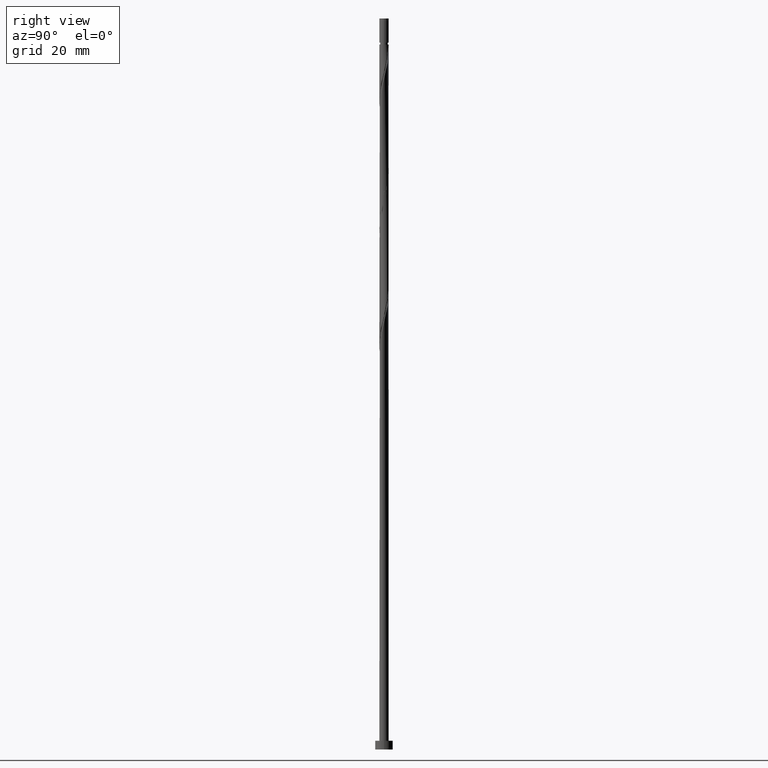
[diagram: clean part render]
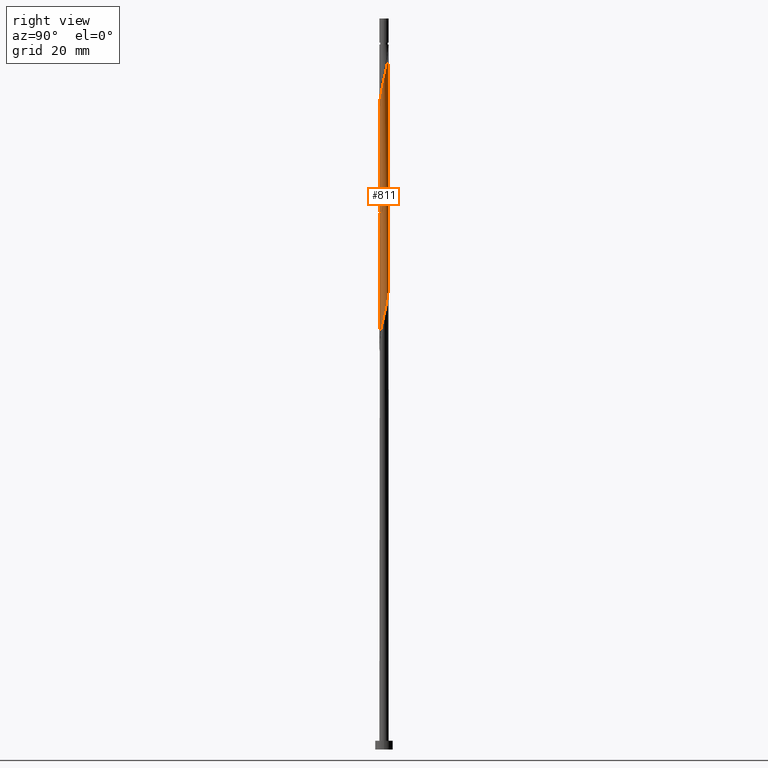
[diagram: same view with one face highlighted and labeled with its STEP entity id]
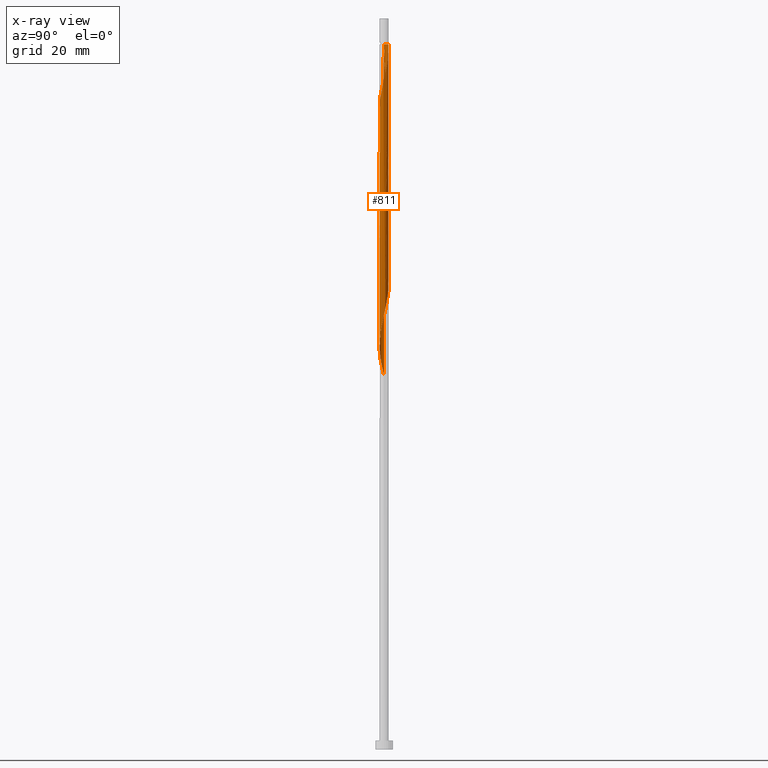
[diagram: x-ray of the same camera — body ghosted, the highlighted face saturated]
A machine part, right view. The second image highlights one B-rep face of the part: STEP entity #811.
The next image is the same camera in x-ray: the body ghosted, the highlighted face saturated — about 0% of this face is hidden behind the body in this view.
In plain terms, the highlighted cylindrical surface (bore or boss wall) has radius 0.8 mm, axis along (-0, -0, -1).
Its self-contained STEP definition (entity closure, byte-faithful):
#3 = ORIENTED_EDGE ( 'NONE', *, *, #1237, .F. ) ;
#8 = CARTESIAN_POINT ( 'NONE',  ( 0.4473088524546935396, -0.6752552068035418964, 71.06953628322825978 ) ) ;
#15 = CARTESIAN_POINT ( 'NONE',  ( 0.7804319017355962895, 0.2167506644810794636, 75.23620294989488855 ) ) ;
#20 = CARTESIAN_POINT ( 'NONE',  ( -0.8000000000000014877, -5.097654946289876929E-16, 105.5885053913652172 ) ) ;
#34 = CARTESIAN_POINT ( 'NONE',  ( -0.6340813333660076934, 0.5039798274498836772, 103.3612029498949170 ) ) ;
#39 = CARTESIAN_POINT ( 'NONE',  ( -0.8000000000000013767, -5.509965272828037295E-16, 104.2589005084246594 ) ) ;
#42 = CARTESIAN_POINT ( 'NONE',  ( 0.5406950929103505610, 0.5896175171267123982, 117.4237029498949028 ) ) ;
#49 = CARTESIAN_POINT ( 'NONE',  ( -0.6340813333660078044, -0.5039798274498836772, 106.4862029498949454 ) ) ;
#76 = EDGE_CURVE ( 'NONE', #121, #670, #1038, .T. ) ;
#86 = CARTESIAN_POINT ( 'NONE',  ( 0.4473088524546935396, -0.6752552068035418964, 91.90286961656158837 ) ) ;
#92 = CARTESIAN_POINT ( 'NONE',  ( 0.8000000000000012657, -0.08040302522073779212, 94.83753414929067560 ) ) ;
#116 = CARTESIAN_POINT ( 'NONE',  ( 0.8092144845369735329, -0.03502458872262308176, 74.19453628322821714 ) ) ;
#121 = VERTEX_POINT ( 'NONE', #1060 ) ;
#124 = CARTESIAN_POINT ( 'NONE',  ( 0.03502458872262293604, 0.8092144845369735329, 79.40286961656154574 ) ) ;
#132 = CARTESIAN_POINT ( 'NONE',  ( 0.2167506644810797689, 0.7804319017355962895, 118.9862029498949312 ) ) ;
#139 = CARTESIAN_POINT ( 'NONE',  ( 0.2833713911514963435, 0.7587855154630286370, 99.19453628322821714 ) ) ;
#145 = CARTESIAN_POINT ( 'NONE',  ( 0.6752552068035416744, -0.4473088524546935396, 112.7362029498949170 ) ) ;
#147 = CARTESIAN_POINT ( 'NONE',  ( 0.3936756093006903434, 0.6964334244145183872, 98.67370294989493118 ) ) ;
#151 = CARTESIAN_POINT ( 'NONE',  ( 0.7948231931362848002, -0.09086303787922843378, 114.2987029498949454 ) ) ;
#153 = CARTESIAN_POINT ( 'NONE',  ( 0.7278435542695692595, 0.3320297584678866265, 96.59036961656160258 ) ) ;
#156 = VECTOR ( 'NONE', #889, 1000.000000000000000 ) ;
#158 = CARTESIAN_POINT ( 'NONE',  ( -0.7840000000000013625, -0.1591979899370594975, 104.9237029498948885 ) ) ;
#160 = ORIENTED_EDGE ( 'NONE', *, *, #531, .T. ) ;
#174 = CARTESIAN_POINT ( 'NONE',  ( -0.03502458872262301931, -0.8092144845369735329, 68.98620294989488855 ) ) ;
#192 = CARTESIAN_POINT ( 'NONE',  ( -0.7840000000000015845, 0.1591979899370596363, 84.09036961656160258 ) ) ;
#198 = CARTESIAN_POINT ( 'NONE',  ( -0.03502458872262301931, -0.8092144845369735329, 89.81953628322821714 ) ) ;
#206 = EDGE_CURVE ( 'NONE', #1351, #1007, #1102, .T. ) ;
#210 = ORIENTED_EDGE ( 'NONE', *, *, #271, .F. ) ;
#221 = CARTESIAN_POINT ( 'NONE',  ( 0.3936756093006903434, 0.6964334244145183872, 77.84036961656158837 ) ) ;
#232 = CARTESIAN_POINT ( 'NONE',  ( 0.1591979899370597751, 0.7840000000000015845, 78.88203628322828820 ) ) ;
#256 = CARTESIAN_POINT ( 'NONE',  ( -0.3320297584678867375, -0.7278435542695689264, 108.0487029498949312 ) ) ;
#268 = CARTESIAN_POINT ( 'NONE',  ( 0.2833713911514960659, -0.7587855154630289700, 110.6528696165615884 ) ) ;
#270 = CARTESIAN_POINT ( 'NONE',  ( -0.6964334244145183872, 0.3936756093006901769, 103.8820362832282882 ) ) ;
#271 = EDGE_CURVE ( 'NONE', #121, #795, #508, .T. ) ;
#290 = CARTESIAN_POINT ( 'NONE',  ( -0.7278435542695691485, -0.3320297584678866265, 65.34036961656160258 ) ) ;
#299 = CARTESIAN_POINT ( 'NONE',  ( -0.7948231931362853553, -0.09086303787922836439, 85.13203628322828820 ) ) ;
#305 = CARTESIAN_POINT ( 'NONE',  ( 0.7840000000000015845, -0.1591979899370597473, 94.50703628322827399 ) ) ;
#327 = CARTESIAN_POINT ( 'NONE',  ( -0.2167506644810796024, 0.7804319017355962895, 80.44453628322824557 ) ) ;
#335 = CARTESIAN_POINT ( 'NONE',  ( 0.3320297584678866265, -0.7278435542695691485, 70.54870294989491697 ) ) ;
#354 = CARTESIAN_POINT ( 'NONE',  ( 0.8000000000000014877, 1.094496503174003127E-15, 95.17183872469851735 ) ) ;
#361 = CARTESIAN_POINT ( 'NONE',  ( 0.4473088524546936506, 0.6752552068035415633, 117.9445362832282598 ) ) ;
#368 = CARTESIAN_POINT ( 'NONE',  ( -0.8000000000000005995, -0.08040302522073981828, 104.5932050838324585 ) ) ;
#371 = CARTESIAN_POINT ( 'NONE',  ( 0.1591979899370597751, 0.7840000000000015845, 99.71536961656160258 ) ) ;
#376 = CARTESIAN_POINT ( 'NONE',  ( 0.7587855154630289700, 0.2833713911514960104, 115.8612029498949454 ) ) ;
#378 = DIRECTION ( 'NONE',  ( -0.000000000000000000, -0.000000000000000000, -1.000000000000000000 ) ) ;
#388 = VECTOR ( 'NONE', #1297, 1000.000000000000000 ) ;
#396 = CARTESIAN_POINT ( 'NONE',  ( 0.09086303787922830888, -0.7948231931362853553, 69.50703628322828820 ) ) ;
#402 = CARTESIAN_POINT ( 'NONE',  ( -0.7804319017355962895, -0.2167506644810796024, 64.81953628322825978 ) ) ;
#411 = CARTESIAN_POINT ( 'NONE',  ( -0.7278435542695691485, -0.3320297584678866265, 86.17370294989491697 ) ) ;
#416 = CARTESIAN_POINT ( 'NONE',  ( 0.6964334244145183872, -0.3936756093006902324, 93.46536961656161679 ) ) ;
#424 = ORIENTED_EDGE ( 'NONE', *, *, #76, .T. ) ;
#428 = CARTESIAN_POINT ( 'NONE',  ( 0.8000000000000000444, 9.797174393178826150E-17, 125.0000000000000000 ) ) ;
#441 = ORIENTED_EDGE ( 'NONE', *, *, #867, .F. ) ;
#442 = ORIENTED_EDGE ( 'NONE', *, *, #735, .F. ) ;
#448 = CARTESIAN_POINT ( 'NONE',  ( 0.5896175171267131754, 0.5406950929103506720, 76.79870294989494539 ) ) ;
#455 = CARTESIAN_POINT ( 'NONE',  ( 0.7840000000000015845, -0.1591979899370597473, 73.67370294989491697 ) ) ;
#475 = CYLINDRICAL_SURFACE ( 'NONE', #726, 0.8000000000000000444 ) ;
#484 = CARTESIAN_POINT ( 'NONE',  ( -0.8000000000000021538, 0.08040302522073304592, 105.2542008159573612 ) ) ;
#508 = LINE ( 'NONE', #966, #388 ) ;
#509 = CARTESIAN_POINT ( 'NONE',  ( -0.2833713911514962880, -0.7587855154630286370, 67.94453628322823135 ) ) ;
#518 = CARTESIAN_POINT ( 'NONE',  ( -0.3936756093006901769, -0.6964334244145183872, 67.42370294989491697 ) ) ;
#523 = VERTEX_POINT ( 'NONE', #1008 ) ;
#527 = CARTESIAN_POINT ( 'NONE',  ( -0.3936756093006901769, -0.6964334244145183872, 88.25703628322827399 ) ) ;
#531 = EDGE_CURVE ( 'NONE', #523, #1007, #763, .T. ) ;
#534 = CARTESIAN_POINT ( 'NONE',  ( -0.5896175171267131754, -0.5406950929103506720, 87.21536961656157416 ) ) ;
#540 = CARTESIAN_POINT ( 'NONE',  ( 0.6340813333660076934, -0.5039798274498837882, 92.94453628322827399 ) ) ;
#556 = EDGE_LOOP ( 'NONE', ( #210, #424, #442, #160, #662, #3, #913, #441 ) ) ;
#563 = CARTESIAN_POINT ( 'NONE',  ( 0.7587855154630286370, -0.2833713911514963435, 73.15286961656157416 ) ) ;
#569 = CARTESIAN_POINT ( 'NONE',  ( 0.5039798274498837882, 0.6340813333660076934, 77.31953628322825978 ) ) ;
#586 = CARTESIAN_POINT ( 'NONE',  ( 0.5039798274498837882, 0.6340813333660076934, 98.15286961656157416 ) ) ;
#592 = CARTESIAN_POINT ( 'NONE',  ( 0.7278435542695689264, -0.3320297584678867375, 113.2570362832282456 ) ) ;
#594 = CARTESIAN_POINT ( 'NONE',  ( -0.8000000000000014877, 1.015782713562174009E-15, 63.92183872469851735 ) ) ;
#600 = CARTESIAN_POINT ( 'NONE',  ( 0.8092144845369734218, 0.03502458872262277645, 114.8195362832282598 ) ) ;
#604 = CARTESIAN_POINT ( 'NONE',  ( 0.7804319017355962895, 0.2167506644810794636, 96.06953628322824557 ) ) ;
#609 = CARTESIAN_POINT ( 'NONE',  ( -0.7587855154630289700, -0.2833713911514961215, 105.4445362832282456 ) ) ;
#628 = CARTESIAN_POINT ( 'NONE',  ( 0.2167506644810794636, -0.7804319017355962895, 70.02786961656157416 ) ) ;
#645 = CARTESIAN_POINT ( 'NONE',  ( -0.7587855154630288590, 0.2833713911514962880, 83.56953628322824557 ) ) ;
#651 = AXIS2_PLACEMENT_3D ( 'NONE', #951, #717, #1169 ) ;
#662 = ORIENTED_EDGE ( 'NONE', *, *, #206, .F. ) ;
#665 = CARTESIAN_POINT ( 'NONE',  ( 0.8000000000000014877, 1.094496503174003127E-15, 95.17183872469851735 ) ) ;
#669 = VERTEX_POINT ( 'NONE', #1442 ) ;
#670 = VERTEX_POINT ( 'NONE', #1168 ) ;
#675 = CARTESIAN_POINT ( 'NONE',  ( -0.5406950929103506720, 0.5896175171267129533, 82.00703628322830241 ) ) ;
#684 = CARTESIAN_POINT ( 'NONE',  ( -0.6964334244145183872, 0.3936756093006901769, 83.04870294989493118 ) ) ;
#693 = CARTESIAN_POINT ( 'NONE',  ( -0.1591979899370589702, 0.7839999999999969216, 120.5487029498949312 ) ) ;
#709 = CARTESIAN_POINT ( 'NONE',  ( -0.09086303787922839215, -0.7948231931362848002, 109.0903696165615884 ) ) ;
#716 = CARTESIAN_POINT ( 'NONE',  ( 0.7804319017355962895, -0.2167506644810797134, 113.7778696165616168 ) ) ;
#717 = DIRECTION ( 'NONE',  ( -0.000000000000000000, -0.000000000000000000, -1.000000000000000000 ) ) ;
#718 = CARTESIAN_POINT ( 'NONE',  ( -0.7840000000000015845, 0.1591979899370596363, 104.9237029498949454 ) ) ;
#722 = CARTESIAN_POINT ( 'NONE',  ( 0.5039798274498835662, -0.6340813333660078044, 111.6945362832282882 ) ) ;
#725 = CARTESIAN_POINT ( 'NONE',  ( 0.03502458872262293604, 0.8092144845369735329, 100.2362029498949170 ) ) ;
#726 = AXIS2_PLACEMENT_3D ( 'NONE', #1391, #378, #1372 ) ;
#735 = EDGE_CURVE ( 'NONE', #523, #670, #1392, .T. ) ;
#745 = CARTESIAN_POINT ( 'NONE',  ( -0.6752552068035418964, -0.4473088524546935396, 65.86120294989491697 ) ) ;
#755 = CARTESIAN_POINT ( 'NONE',  ( 0.7587855154630286370, -0.2833713911514963435, 93.98620294989488855 ) ) ;
#761 = CARTESIAN_POINT ( 'NONE',  ( 0.3320297584678866265, -0.7278435542695691485, 91.38203628322827399 ) ) ;
#763 = LINE ( 'NONE', #877, #986 ) ;
#783 = CARTESIAN_POINT ( 'NONE',  ( 0.2833713911514963435, 0.7587855154630286370, 78.36120294989493118 ) ) ;
#795 = VERTEX_POINT ( 'NONE', #20 ) ;
#811 = ADVANCED_FACE ( 'NONE', ( #928 ), #475, .T. ) ;
#818 = CARTESIAN_POINT ( 'NONE',  ( -0.6964334244145182762, -0.3936756093006898438, 105.9653696165615742 ) ) ;
#828 = CARTESIAN_POINT ( 'NONE',  ( -0.2167506644810796856, -0.7804319017355960675, 108.5695362832282740 ) ) ;
#834 = CARTESIAN_POINT ( 'NONE',  ( 0.6964334244145182762, 0.3936756093006897883, 116.3820362832282740 ) ) ;
#859 = CARTESIAN_POINT ( 'NONE',  ( -0.7948231931362853553, -0.09086303787922836439, 64.29870294989494539 ) ) ;
#867 = EDGE_CURVE ( 'NONE', #795, #1351, #1341, .T. ) ;
#870 = CARTESIAN_POINT ( 'NONE',  ( 0.5406950929103506720, -0.5896175171267131754, 92.42370294989493118 ) ) ;
#875 = CARTESIAN_POINT ( 'NONE',  ( 0.2167506644810794636, -0.7804319017355962895, 90.86120294989491697 ) ) ;
#877 = CARTESIAN_POINT ( 'NONE',  ( -0.8000000000000000444, 0.000000000000000000, 125.0000000000000000 ) ) ;
#889 = DIRECTION ( 'NONE',  ( -0.000000000000000000, -0.000000000000000000, -1.000000000000000000 ) ) ;
#899 = CARTESIAN_POINT ( 'NONE',  ( -0.6340813333660076934, 0.5039798274498836772, 82.52786961656158837 ) ) ;
#908 = CARTESIAN_POINT ( 'NONE',  ( 0.6752552068035418964, 0.4473088524546934841, 76.27786961656158837 ) ) ;
#913 = ORIENTED_EDGE ( 'NONE', *, *, #1237, .T. ) ;
#928 = FACE_OUTER_BOUND ( 'NONE', #556, .T. ) ;
#935 = CARTESIAN_POINT ( 'NONE',  ( -0.09086303787922840602, 0.7948231931362851332, 100.7570362832282882 ) ) ;
#940 = CARTESIAN_POINT ( 'NONE',  ( -0.4473088524546935396, -0.6752552068035416744, 107.5278696165616168 ) ) ;
#944 = CARTESIAN_POINT ( 'NONE',  ( -0.2167506644810796024, 0.7804319017355962895, 101.2778696165615884 ) ) ;
#951 = CARTESIAN_POINT ( 'NONE',  ( 0.000000000000000000, 0.000000000000000000, 120.5487029498949170 ) ) ;
#966 = CARTESIAN_POINT ( 'NONE',  ( -0.8000000000000000444, 0.000000000000000000, 125.0000000000000000 ) ) ;
#983 = CARTESIAN_POINT ( 'NONE',  ( -0.6752552068035418964, -0.4473088524546935396, 86.69453628322825978 ) ) ;
#986 = VECTOR ( 'NONE', #1155, 1000.000000000000000 ) ;
#1007 = VERTEX_POINT ( 'NONE', #594 ) ;
#1008 = CARTESIAN_POINT ( 'NONE',  ( -0.8000000000000012657, -5.509965272828037295E-16, 104.2589005084246594 ) ) ;
#1021 = CARTESIAN_POINT ( 'NONE',  ( 0.6340813333660076934, -0.5039798274498837882, 72.11120294989493118 ) ) ;
#1029 = CARTESIAN_POINT ( 'NONE',  ( 0.7278435542695692595, 0.3320297584678866265, 75.75703628322825978 ) ) ;
#1033 = CARTESIAN_POINT ( 'NONE',  ( 0.3320297584678867375, 0.7278435542695689264, 118.4653696165615600 ) ) ;
#1038 = CIRCLE ( 'NONE', #651, 0.7999999999999973799 ) ;
#1054 = CARTESIAN_POINT ( 'NONE',  ( -0.4473088524546936506, 0.6752552068035418964, 102.3195362832282456 ) ) ;
#1058 = CARTESIAN_POINT ( 'NONE',  ( 0.7840000000000013625, 0.1591979899370594698, 115.3403696165616026 ) ) ;
#1060 = CARTESIAN_POINT ( 'NONE',  ( -0.7999999999999973799, 0.000000000000000000, 120.5487029498949170 ) ) ;
#1062 = CARTESIAN_POINT ( 'NONE',  ( -0.03502458872262610712, 0.8092144845369737549, 120.0278696165616026 ) ) ;
#1082 = CARTESIAN_POINT ( 'NONE',  ( -0.5896175171267131754, -0.5406950929103506720, 66.38203628322825978 ) ) ;
#1096 = CARTESIAN_POINT ( 'NONE',  ( -0.5039798274498837882, -0.6340813333660076934, 87.73620294989491697 ) ) ;
#1102 =( BOUNDED_CURVE ( )  B_SPLINE_CURVE ( 2, ( #1432, #92, #305, #755, #416, #540, #870, #86, #761, #875, #1213, #198, #1425, #1106, #527, #1096, #534, #983, #411, #1311, #299, #1207, #192, #645, #684, #899, #675, #1236, #1338, #327, #1137, #124, #232, #783, #221, #569, #448, #908, #1029, #15, #1129, #116, #455, #563, #1245, #1021, #1346, #8, #335, #628, #396, #174, #1415, #509, #518, #1409, #1082, #745, #290, #402, #859, #1303, #1199 ),
 .UNSPECIFIED., .F., .F. ) 
 B_SPLINE_CURVE_WITH_KNOTS ( ( 3, 2, 2, 2, 2, 2, 2, 2, 2, 2, 2, 2, 2, 2, 2, 2, 2, 2, 2, 2, 2, 2, 2, 2, 2, 2, 2, 2, 2, 2, 2, 3 ),
 ( 0.5545322023138552492, 0.5625000000000000000, 0.5749999999999999556, 0.5875000000000000222, 0.5999999999999999778, 0.6125000000000000444, 0.6250000000000000000, 0.6374999999999999556, 0.6500000000000000222, 0.6624999999999999778, 0.6750000000000000444, 0.6875000000000000000, 0.6999999999999999556, 0.7125000000000000222, 0.7249999999999999778, 0.7375000000000000444, 0.7500000000000000000, 0.7624999999999999556, 0.7750000000000000222, 0.7874999999999999778, 0.8000000000000000444, 0.8125000000000000000, 0.8249999999999999556, 0.8375000000000000222, 0.8499999999999999778, 0.8625000000000000444, 0.8750000000000000000, 0.8874999999999999556, 0.9000000000000000222, 0.9124999999999999778, 0.9250000000000000444, 0.9295322023138553602 ),
 .UNSPECIFIED. ) 
 CURVE ( )  GEOMETRIC_REPRESENTATION_ITEM ( )  RATIONAL_B_SPLINE_CURVE ( ( 0.9039174447099520560, 0.9019565955404814650, 0.9090909090909298218, 0.8978984914501458858, 0.9090909090909298218, 0.8978984914501458858, 0.9090909090909298218, 0.8978984914501458858, 0.9090909090909298218, 0.8978984914501458858, 0.9090909090909298218, 0.8978984914501458858, 0.9090909090909298218, 0.8978984914501458858, 0.9090909090909298218, 0.8978984914501458858, 0.9090909090909298218, 0.8978984914501458858, 0.9090909090909298218, 0.8978984914501458858, 0.9090909090909298218, 0.8978984914501458858, 0.9090909090909298218, 0.8978984914501458858, 0.9090909090909298218, 0.8978984914501458858, 0.9090909090909298218, 0.8978984914501458858, 0.9090909090909298218, 0.8978984914501458858, 0.9090909090909298218, 0.8978984914501458858, 0.9090909090909298218, 0.8978984914501458858, 0.9090909090909298218, 0.8978984914501458858, 0.9090909090909298218, 0.8978984914501458858, 0.9090909090909298218, 0.8978984914501458858, 0.9090909090909298218, 0.8978984914501458858, 0.9090909090909298218, 0.8978984914501458858, 0.9090909090909298218, 0.8978984914501458858, 0.9090909090909298218, 0.8978984914501458858, 0.9090909090909298218, 0.8978984914501458858, 0.9090909090909298218, 0.8978984914501458858, 0.9090909090909298218, 0.8978984914501458858, 0.9090909090909298218, 0.8978984914501458858, 0.9090909090909298218, 0.8978984914501458858, 0.9090909090909298218, 0.8978984914501458858, 0.9090909090909298218, 0.9050328050005940206, 0.9039174447099518339 ) ) 
 REPRESENTATION_ITEM ( '' )  );
#1106 = CARTESIAN_POINT ( 'NONE',  ( -0.2833713911514962880, -0.7587855154630286370, 88.77786961656154574 ) ) ;
#1129 = CARTESIAN_POINT ( 'NONE',  ( 0.7948231931362853553, 0.09086303787922823949, 74.71536961656158837 ) ) ;
#1137 = CARTESIAN_POINT ( 'NONE',  ( -0.09086303787922840602, 0.7948231931362851332, 79.92370294989493118 ) ) ;
#1142 = LINE ( 'NONE', #428, #156 ) ;
#1155 = DIRECTION ( 'NONE',  ( -0.000000000000000000, -0.000000000000000000, -1.000000000000000000 ) ) ;
#1156 = CARTESIAN_POINT ( 'NONE',  ( -0.5406950929103506720, 0.5896175171267129533, 102.8403696165616026 ) ) ;
#1162 = CARTESIAN_POINT ( 'NONE',  ( 0.1591979899370594698, -0.7840000000000013625, 110.1320362832282456 ) ) ;
#1164 = CARTESIAN_POINT ( 'NONE',  ( -0.8000000000000014877, -5.097654946289876929E-16, 105.5885053913652030 ) ) ;
#1168 = CARTESIAN_POINT ( 'NONE',  ( -0.1591979899370589424, 0.7839999999999969216, 120.5487029498949170 ) ) ;
#1169 = DIRECTION ( 'NONE',  ( -1.000000000000000000, 0.000000000000000000, 0.000000000000000000 ) ) ;
#1175 = CARTESIAN_POINT ( 'NONE',  ( 0.6340813333660078044, 0.5039798274498835662, 116.9028696165616168 ) ) ;
#1199 = CARTESIAN_POINT ( 'NONE',  ( -0.8000000000000014877, 1.015782713562173811E-15, 63.92183872469851735 ) ) ;
#1207 = CARTESIAN_POINT ( 'NONE',  ( -0.8092144845369735329, 0.03502458872262294992, 84.61120294989490276 ) ) ;
#1213 = CARTESIAN_POINT ( 'NONE',  ( 0.09086303787922830888, -0.7948231931362853553, 90.34036961656163101 ) ) ;
#1236 = CARTESIAN_POINT ( 'NONE',  ( -0.4473088524546936506, 0.6752552068035418964, 81.48620294989490276 ) ) ;
#1237 = EDGE_CURVE ( 'NONE', #669, #1351, #1142, .T. ) ;
#1245 = CARTESIAN_POINT ( 'NONE',  ( 0.6964334244145183872, -0.3936756093006902324, 72.63203628322825978 ) ) ;
#1256 = CARTESIAN_POINT ( 'NONE',  ( 0.6752552068035418964, 0.4473088524546934841, 97.11120294989490276 ) ) ;
#1263 = CARTESIAN_POINT ( 'NONE',  ( 0.7948231931362853553, 0.09086303787922823949, 95.54870294989491697 ) ) ;
#1269 = CARTESIAN_POINT ( 'NONE',  ( -0.5406950929103505610, -0.5896175171267125092, 107.0070362832282598 ) ) ;
#1270 = CARTESIAN_POINT ( 'NONE',  ( -0.7587855154630288590, 0.2833713911514962880, 104.4028696165615742 ) ) ;
#1275 = CARTESIAN_POINT ( 'NONE',  ( 0.3936756093006898438, -0.6964334244145182762, 111.1737029498949312 ) ) ;
#1277 = CARTESIAN_POINT ( 'NONE',  ( -0.3320297584678866820, 0.7278435542695691485, 101.7987029498949170 ) ) ;
#1281 = CARTESIAN_POINT ( 'NONE',  ( 0.03502458872262283196, -0.8092144845369734218, 109.6112029498949028 ) ) ;
#1297 = DIRECTION ( 'NONE',  ( -0.000000000000000000, -0.000000000000000000, -1.000000000000000000 ) ) ;
#1303 = CARTESIAN_POINT ( 'NONE',  ( -0.8000000000000018208, -0.04557898995714469714, 64.11134981390581800 ) ) ;
#1311 = CARTESIAN_POINT ( 'NONE',  ( -0.7804319017355962895, -0.2167506644810796024, 85.65286961656158837 ) ) ;
#1338 = CARTESIAN_POINT ( 'NONE',  ( -0.3320297584678866820, 0.7278435542695691485, 80.96536961656158837 ) ) ;
#1341 =( BOUNDED_CURVE ( )  B_SPLINE_CURVE ( 2, ( #1164, #484, #718, #1270, #270, #34, #1156, #1054, #1277, #944, #935, #725, #371, #139, #147, #586, #1384, #1256, #153, #604, #1263, #1365, #354 ),
 .UNSPECIFIED., .F., .F. ) 
 B_SPLINE_CURVE_WITH_KNOTS ( ( 3, 2, 2, 2, 2, 2, 2, 2, 2, 2, 2, 3 ),
 ( 0.4295322023138547496, 0.4375000000000000000, 0.4500000000000000111, 0.4625000000000000222, 0.4749999999999999778, 0.4874999999999999889, 0.5000000000000000000, 0.5124999999999999556, 0.5250000000000000222, 0.5374999999999999778, 0.5500000000000000444, 0.5545322023138552492 ),
 .UNSPECIFIED. ) 
 CURVE ( )  GEOMETRIC_REPRESENTATION_ITEM ( )  RATIONAL_B_SPLINE_CURVE ( ( 0.9039174447099525000, 0.9019565955404811319, 0.9090909090909298218, 0.8978984914501458858, 0.9090909090909298218, 0.8978984914501458858, 0.9090909090909298218, 0.8978984914501458858, 0.9090909090909298218, 0.8978984914501458858, 0.9090909090909298218, 0.8978984914501458858, 0.9090909090909298218, 0.8978984914501458858, 0.9090909090909298218, 0.8978984914501458858, 0.9090909090909298218, 0.8978984914501458858, 0.9090909090909298218, 0.8978984914501458858, 0.9090909090909298218, 0.9050328050005942426, 0.9039174447099520560 ) ) 
 REPRESENTATION_ITEM ( '' )  );
#1346 = CARTESIAN_POINT ( 'NONE',  ( 0.5406950929103506720, -0.5896175171267131754, 71.59036961656158837 ) ) ;
#1351 = VERTEX_POINT ( 'NONE', #665 ) ;
#1358 = CARTESIAN_POINT ( 'NONE',  ( 0.09086303787922854480, 0.7948231931362848002, 119.5070362832282740 ) ) ;
#1365 = CARTESIAN_POINT ( 'NONE',  ( 0.8000000000000014877, 0.04557898995714566859, 95.36134981390578957 ) ) ;
#1372 = DIRECTION ( 'NONE',  ( -1.000000000000000000, 0.000000000000000000, 0.000000000000000000 ) ) ;
#1380 = CARTESIAN_POINT ( 'NONE',  ( 0.5896175171267125092, -0.5406950929103505610, 112.2153696165615884 ) ) ;
#1384 = CARTESIAN_POINT ( 'NONE',  ( 0.5896175171267131754, 0.5406950929103506720, 97.63203628322828820 ) ) ;
#1391 = CARTESIAN_POINT ( 'NONE',  ( 0.000000000000000000, 0.000000000000000000, 125.0000000000000000 ) ) ;
#1392 =( BOUNDED_CURVE ( )  B_SPLINE_CURVE ( 2, ( #39, #368, #158, #609, #818, #49, #1269, #940, #256, #828, #709, #1281, #1162, #268, #1275, #722, #1380, #145, #592, #716, #151, #600, #1058, #376, #834, #1175, #42, #361, #1033, #132, #1358, #1062, #693 ),
 .UNSPECIFIED., .F., .F. ) 
 B_SPLINE_CURVE_WITH_KNOTS ( ( 3, 2, 2, 2, 2, 2, 2, 2, 2, 2, 2, 2, 2, 2, 2, 2, 3 ),
 ( 0.5545322023138554712, 0.5625000000000000000, 0.5749999999999999556, 0.5875000000000001332, 0.6000000000000000888, 0.6125000000000001554, 0.6250000000000001110, 0.6375000000000000666, 0.6500000000000001332, 0.6625000000000001998, 0.6750000000000002665, 0.6875000000000002220, 0.7000000000000001776, 0.7125000000000003553, 0.7250000000000003109, 0.7375000000000003775, 0.7500000000000003331 ),
 .UNSPECIFIED. ) 
 CURVE ( )  GEOMETRIC_REPRESENTATION_ITEM ( )  RATIONAL_B_SPLINE_CURVE ( ( 0.9039174447099506127, 0.9019565955404804658, 0.9090909090909286006, 0.8978984914501445536, 0.9090909090909286006, 0.8978984914501445536, 0.9090909090909286006, 0.8978984914501445536, 0.9090909090909286006, 0.8978984914501445536, 0.9090909090909286006, 0.8978984914501445536, 0.9090909090909286006, 0.8978984914501445536, 0.9090909090909286006, 0.8978984914501445536, 0.9090909090909286006, 0.8978984914501445536, 0.9090909090909286006, 0.8978984914501445536, 0.9090909090909286006, 0.8978984914501445536, 0.9090909090909286006, 0.8978984914501445536, 0.9090909090909286006, 0.8978984914501445536, 0.9090909090909286006, 0.8978984914501445536, 0.9090909090909286006, 0.8978984914501445536, 0.9090909090909286006, 0.8978984914501442205, 0.9090909090909289336 ) ) 
 REPRESENTATION_ITEM ( '' )  );
#1409 = CARTESIAN_POINT ( 'NONE',  ( -0.5039798274498837882, -0.6340813333660076934, 66.90286961656158837 ) ) ;
#1415 = CARTESIAN_POINT ( 'NONE',  ( -0.1591979899370597196, -0.7840000000000015845, 68.46536961656160258 ) ) ;
#1425 = CARTESIAN_POINT ( 'NONE',  ( -0.1591979899370597196, -0.7840000000000015845, 89.29870294989493118 ) ) ;
#1432 = CARTESIAN_POINT ( 'NONE',  ( 0.8000000000000014877, 1.094496503174003127E-15, 95.17183872469851735 ) ) ;
#1442 = CARTESIAN_POINT ( 'NONE',  ( 0.8000000000000000444, 9.797174393178826150E-17, 120.5487029498949170 ) ) ;